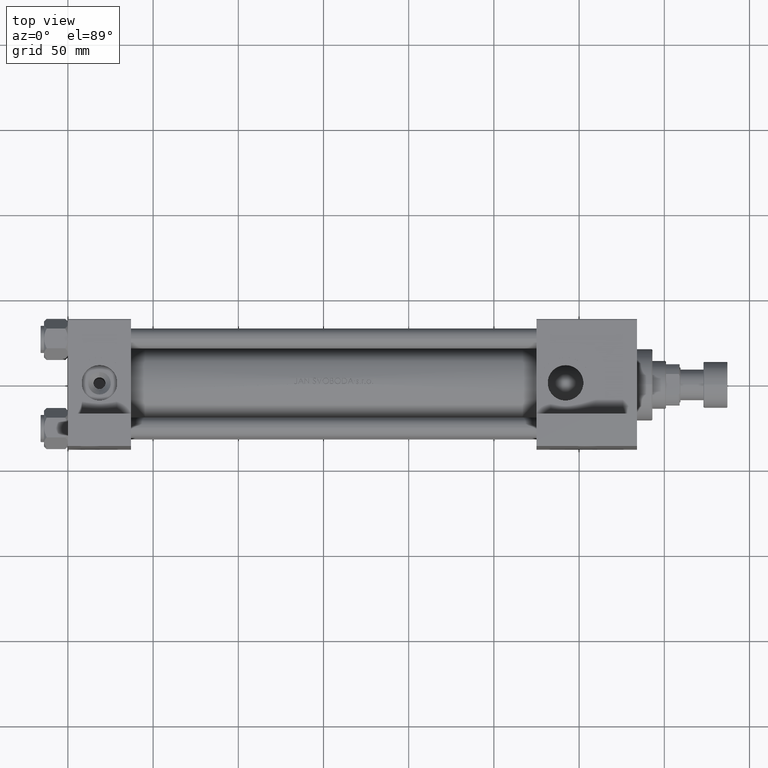
[diagram: clean part render]
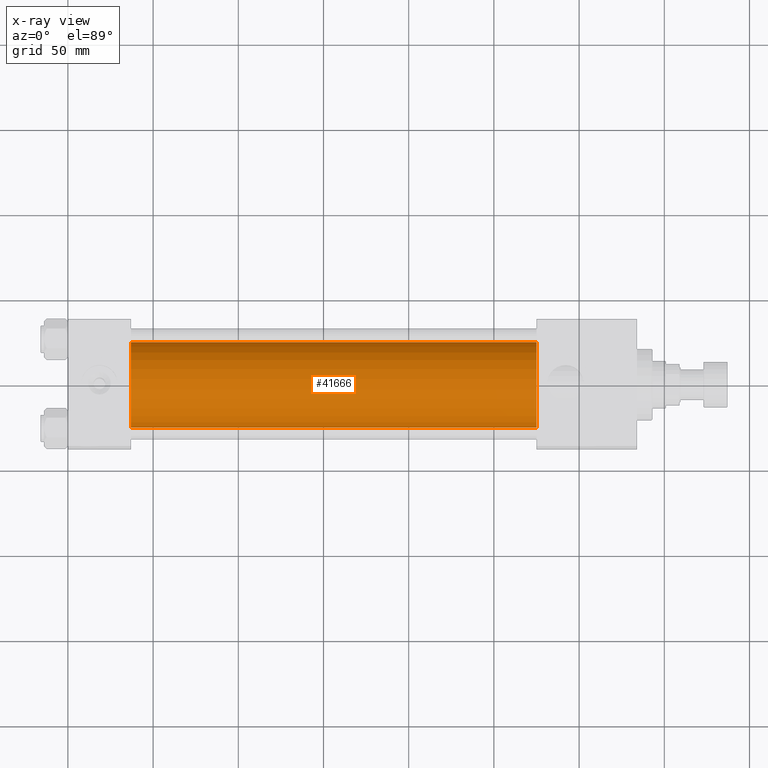
[diagram: x-ray — body ghosted, one internal face saturated and labeled with its STEP entity id]
A machine part, top view, then the same camera in x-ray: the body is ghosted and one INTERNAL B-rep face — a face not visible from any outside direction — is saturated and labeled: STEP entity #41666.
In plain terms, the highlighted cylindrical surface (partial cylindrical patch) has radius 25 mm, axis along (-1, -0, 0).
Its self-contained STEP definition (entity closure, byte-faithful):
#134 = VERTEX_POINT ( 'NONE', #32833 ) ;
#636 = ORIENTED_EDGE ( 'NONE', *, *, #20271, .T. ) ;
#7071 = AXIS2_PLACEMENT_3D ( 'NONE', #42500, #22534, #11375 ) ;
#8736 = CYLINDRICAL_SURFACE ( 'NONE', #17515, 25.00000000000000000 ) ;
#10790 = LINE ( 'NONE', #23209, #11917 ) ;
#11375 = DIRECTION ( 'NONE',  ( 0.000000000000000000, 0.000000000000000000, -1.000000000000000000 ) ) ;
#11915 = CIRCLE ( 'NONE', #7071, 25.00000000000000000 ) ;
#11917 = VECTOR ( 'NONE', #19169, 1000.000000000000000 ) ;
#13522 = CARTESIAN_POINT ( 'NONE',  ( 274.9999999999999432, 0.000000000000000000, -0.5000000000000004441 ) ) ;
#13681 = EDGE_LOOP ( 'NONE', ( #636, #40596, #36558, #39828 ) ) ;
#15366 = EDGE_CURVE ( 'NONE', #48304, #18234, #41799, .T. ) ;
#15440 = EDGE_CURVE ( 'NONE', #43872, #18234, #10790, .T. ) ;
#16734 = CARTESIAN_POINT ( 'NONE',  ( 274.9999999999999432, 0.000000000000000000, 24.50000000000000000 ) ) ;
#17162 = DIRECTION ( 'NONE',  ( 1.000000000000000000, 0.000000000000000000, 0.000000000000000000 ) ) ;
#17515 = AXIS2_PLACEMENT_3D ( 'NONE', #13522, #39623, #24209 ) ;
#18234 = VERTEX_POINT ( 'NONE', #41290 ) ;
#19169 = DIRECTION ( 'NONE',  ( -1.000000000000000000, -0.000000000000000000, -0.000000000000000000 ) ) ;
#20271 = EDGE_CURVE ( 'NONE', #134, #43872, #11915, .T. ) ;
#20569 = CARTESIAN_POINT ( 'NONE',  ( 274.9999999999999432, 3.061616997868383043E-15, -25.50000000000000355 ) ) ;
#20603 = EDGE_CURVE ( 'NONE', #134, #48304, #27644, .T. ) ;
#20973 = CARTESIAN_POINT ( 'NONE',  ( 37.00000000000000000, 0.000000000000000000, -0.5000000000000004441 ) ) ;
#22534 = DIRECTION ( 'NONE',  ( 1.000000000000000000, 0.000000000000000000, 0.000000000000000000 ) ) ;
#23209 = CARTESIAN_POINT ( 'NONE',  ( 274.9999999999999432, 3.061616997868383043E-15, -25.50000000000000355 ) ) ;
#24209 = DIRECTION ( 'NONE',  ( 0.000000000000000000, 0.000000000000000000, 1.000000000000000000 ) ) ;
#26886 = CARTESIAN_POINT ( 'NONE',  ( 37.00000000000000000, 0.000000000000000000, 24.50000000000000000 ) ) ;
#27644 = LINE ( 'NONE', #16734, #30549 ) ;
#30549 = VECTOR ( 'NONE', #43056, 1000.000000000000000 ) ;
#32597 = DIRECTION ( 'NONE',  ( 0.000000000000000000, 0.000000000000000000, -1.000000000000000000 ) ) ;
#32833 = CARTESIAN_POINT ( 'NONE',  ( 274.9999999999999432, 0.000000000000000000, 24.50000000000000000 ) ) ;
#36558 = ORIENTED_EDGE ( 'NONE', *, *, #15366, .F. ) ;
#39623 = DIRECTION ( 'NONE',  ( -1.000000000000000000, -0.000000000000000000, -0.000000000000000000 ) ) ;
#39828 = ORIENTED_EDGE ( 'NONE', *, *, #20603, .F. ) ;
#40109 = FACE_OUTER_BOUND ( 'NONE', #13681, .T. ) ;
#40596 = ORIENTED_EDGE ( 'NONE', *, *, #15440, .T. ) ;
#40989 = AXIS2_PLACEMENT_3D ( 'NONE', #20973, #17162, #32597 ) ;
#41290 = CARTESIAN_POINT ( 'NONE',  ( 37.00000000000000000, 3.061616997868383043E-15, -25.50000000000000355 ) ) ;
#41666 = ADVANCED_FACE ( 'NONE', ( #40109 ), #8736, .F. ) ;
#41799 = CIRCLE ( 'NONE', #40989, 25.00000000000000000 ) ;
#42500 = CARTESIAN_POINT ( 'NONE',  ( 274.9999999999999432, 0.000000000000000000, -0.5000000000000004441 ) ) ;
#43056 = DIRECTION ( 'NONE',  ( -1.000000000000000000, -0.000000000000000000, -0.000000000000000000 ) ) ;
#43872 = VERTEX_POINT ( 'NONE', #20569 ) ;
#48304 = VERTEX_POINT ( 'NONE', #26886 ) ;